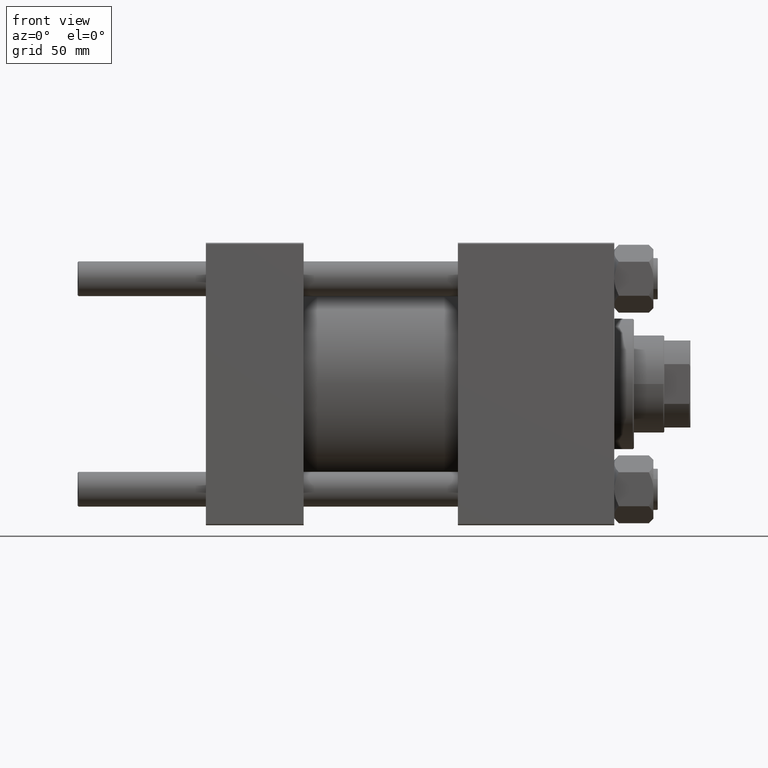
[diagram: clean part render]
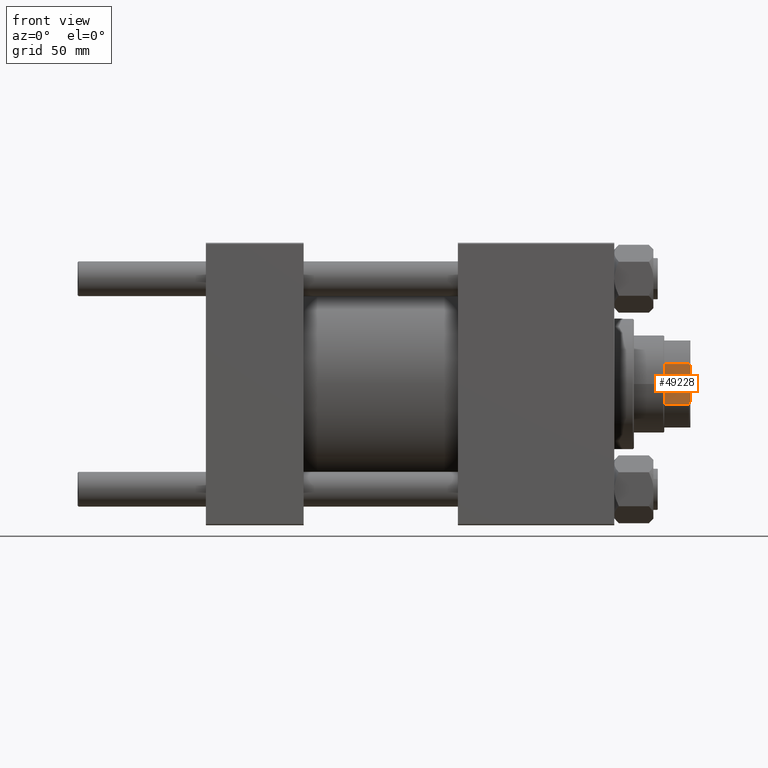
[diagram: same view with one face highlighted and labeled with its STEP entity id]
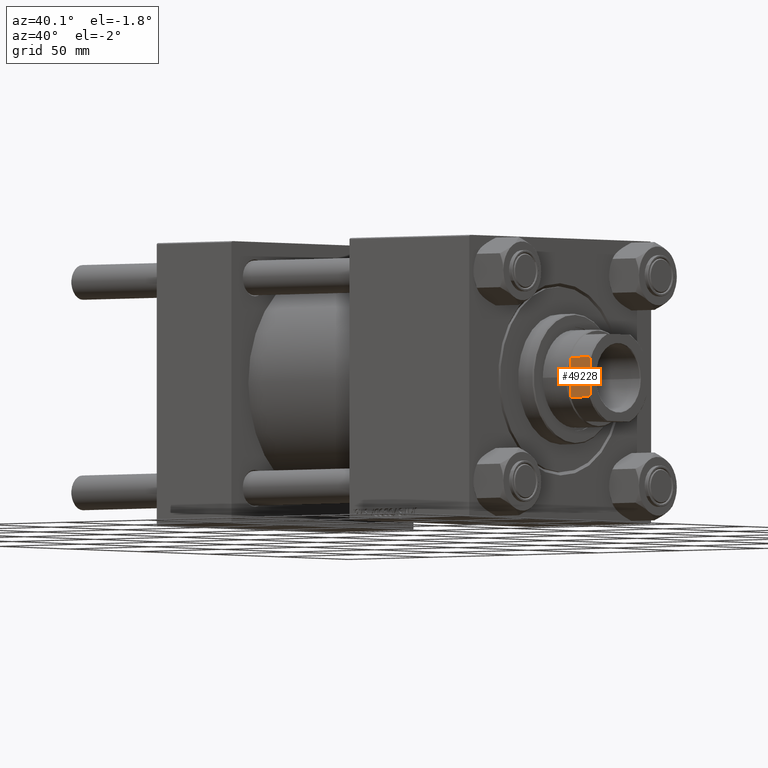
[diagram: same view with one face highlighted and labeled with its STEP entity id]
A machine part, front view. The second image highlights one B-rep face of the part: STEP entity #49228.
A second angle (auxiliary view) of the same face is appended — the face is thin or edge-on in the first view.
In plain terms, the highlighted planar face has unit normal (0, 1, 0).
Its self-contained STEP definition (entity closure, byte-faithful):
#4214 = ORIENTED_EDGE ( 'NONE', *, *, #32032, .T. ) ;
#5583 = VECTOR ( 'NONE', #32980, 1000.000000000000000 ) ;
#5595 = CARTESIAN_POINT ( 'NONE',  ( 19.99999999999999645, 9.165151389911683211, -0.001000000000001000089 ) ) ;
#6303 = CARTESIAN_POINT ( 'NONE',  ( 20.00000000000000000, -8.743570658524330241, 177.6756296011924974 ) ) ;
#6603 = CARTESIAN_POINT ( 'NONE',  ( 19.99999999999999289, -9.165151389911693869, -0.001000000000001000089 ) ) ;
#7261 = LINE ( 'NONE', #11067, #15642 ) ;
#7912 = EDGE_CURVE ( 'NONE', #9667, #32510, #17097, .T. ) ;
#9370 = VERTEX_POINT ( 'NONE', #12925 ) ;
#9667 = VERTEX_POINT ( 'NONE', #36760 ) ;
#9851 = CARTESIAN_POINT ( 'NONE',  ( 20.00000000000000000, -8.318618722654344211, 177.8426607129352419 ) ) ;
#10395 = AXIS2_PLACEMENT_3D ( 'NONE', #29236, #14258, #25176 ) ;
#11064 = ORIENTED_EDGE ( 'NONE', *, *, #19979, .T. ) ;
#11067 = CARTESIAN_POINT ( 'NONE',  ( 19.99999999999999645, 20.00000000000000000, 166.0000000000000000 ) ) ;
#12925 = CARTESIAN_POINT ( 'NONE',  ( 19.99999999999999289, -9.165151389911693869, 177.5000000000000000 ) ) ;
#14258 = DIRECTION ( 'NONE',  ( -1.000000000000000000, -1.734723475976806848E-16, 0.000000000000000000 ) ) ;
#14951 = EDGE_CURVE ( 'NONE', #9667, #9370, #46250, .T. ) ;
#15068 = EDGE_LOOP ( 'NONE', ( #19747, #11064, #23622, #19404, #38677, #4214 ) ) ;
#15642 = VECTOR ( 'NONE', #29849, 1000.000000000000000 ) ;
#16332 = VERTEX_POINT ( 'NONE', #37230 ) ;
#16345 = DIRECTION ( 'NONE',  ( -1.734723475976807094E-16, 1.000000000000000000, -0.000000000000000000 ) ) ;
#16850 = B_SPLINE_CURVE_WITH_KNOTS ( 'NONE', 3,
 ( #35377, #28022, #27764, #19900 ),
 .UNSPECIFIED., .F., .F.,
 ( 4, 4 ),
 ( 0.000000000000000000, 0.001369799431184188935 ),
 .UNSPECIFIED. ) ;
#17097 = LINE ( 'NONE', #24195, #34091 ) ;
#19404 = ORIENTED_EDGE ( 'NONE', *, *, #14951, .T. ) ;
#19747 = ORIENTED_EDGE ( 'NONE', *, *, #49633, .T. ) ;
#19900 = CARTESIAN_POINT ( 'NONE',  ( 20.00000000000000000, 7.889866919029785208, 178.0000000000000284 ) ) ;
#19979 = EDGE_CURVE ( 'NONE', #24128, #32510, #16850, .T. ) ;
#20651 = VECTOR ( 'NONE', #44933, 1000.000000000000000 ) ;
#21261 = CARTESIAN_POINT ( 'NONE',  ( 20.00000000000000000, -7.889866919029643100, 178.0000000000000284 ) ) ;
#23622 = ORIENTED_EDGE ( 'NONE', *, *, #7912, .F. ) ;
#24128 = VERTEX_POINT ( 'NONE', #47613 ) ;
#24195 = CARTESIAN_POINT ( 'NONE',  ( 19.99999999999999645, 20.00000000000000000, 178.0000000000000284 ) ) ;
#25176 = DIRECTION ( 'NONE',  ( 1.734723475976806848E-16, -1.000000000000000000, 0.000000000000000000 ) ) ;
#27764 = CARTESIAN_POINT ( 'NONE',  ( 20.00000000000000000, 8.318618722654436581, 177.8426607129352703 ) ) ;
#28022 = CARTESIAN_POINT ( 'NONE',  ( 19.99999999999999645, 8.743570658524372874, 177.6756296011924974 ) ) ;
#29169 = CARTESIAN_POINT ( 'NONE',  ( 19.99999999999999645, 9.165151389911683211, 166.0000000000000000 ) ) ;
#29236 = CARTESIAN_POINT ( 'NONE',  ( 19.99999999999999645, 20.00000000000000000, 178.0000000000000284 ) ) ;
#29386 = CARTESIAN_POINT ( 'NONE',  ( 19.99999999999999289, -9.165151389911693869, 177.5000000000000000 ) ) ;
#29438 = LINE ( 'NONE', #6603, #20651 ) ;
#29484 = FACE_OUTER_BOUND ( 'NONE', #15068, .T. ) ;
#29849 = DIRECTION ( 'NONE',  ( -1.734723475976807094E-16, 1.000000000000000000, -0.000000000000000000 ) ) ;
#32032 = EDGE_CURVE ( 'NONE', #16332, #43856, #7261, .T. ) ;
#32510 = VERTEX_POINT ( 'NONE', #47272 ) ;
#32980 = DIRECTION ( 'NONE',  ( -0.000000000000000000, -0.000000000000000000, 1.000000000000000000 ) ) ;
#34091 = VECTOR ( 'NONE', #16345, 1000.000000000000000 ) ;
#35377 = CARTESIAN_POINT ( 'NONE',  ( 19.99999999999999645, 9.165151389911683211, 177.5000000000000284 ) ) ;
#36168 = EDGE_CURVE ( 'NONE', #16332, #9370, #29438, .T. ) ;
#36760 = CARTESIAN_POINT ( 'NONE',  ( 20.00000000000000000, -7.889866919029643100, 178.0000000000000284 ) ) ;
#37230 = CARTESIAN_POINT ( 'NONE',  ( 19.99999999999999289, -9.165151389911693869, 166.0000000000000000 ) ) ;
#38677 = ORIENTED_EDGE ( 'NONE', *, *, #36168, .F. ) ;
#41346 = LINE ( 'NONE', #5595, #5583 ) ;
#43856 = VERTEX_POINT ( 'NONE', #29169 ) ;
#44470 = PLANE ( 'NONE',  #10395 ) ;
#44933 = DIRECTION ( 'NONE',  ( -0.000000000000000000, -0.000000000000000000, 1.000000000000000000 ) ) ;
#46250 = B_SPLINE_CURVE_WITH_KNOTS ( 'NONE', 3,
 ( #21261, #9851, #6303, #29386 ),
 .UNSPECIFIED., .F., .F.,
 ( 4, 4 ),
 ( 1.734723475976807094E-18, 0.001369799431184337470 ),
 .UNSPECIFIED. ) ;
#47272 = CARTESIAN_POINT ( 'NONE',  ( 20.00000000000000000, 7.889866919029785208, 178.0000000000000284 ) ) ;
#47613 = CARTESIAN_POINT ( 'NONE',  ( 19.99999999999999645, 9.165151389911683211, 177.5000000000000284 ) ) ;
#49228 = ADVANCED_FACE ( 'NONE', ( #29484 ), #44470, .F. ) ;
#49633 = EDGE_CURVE ( 'NONE', #43856, #24128, #41346, .T. ) ;